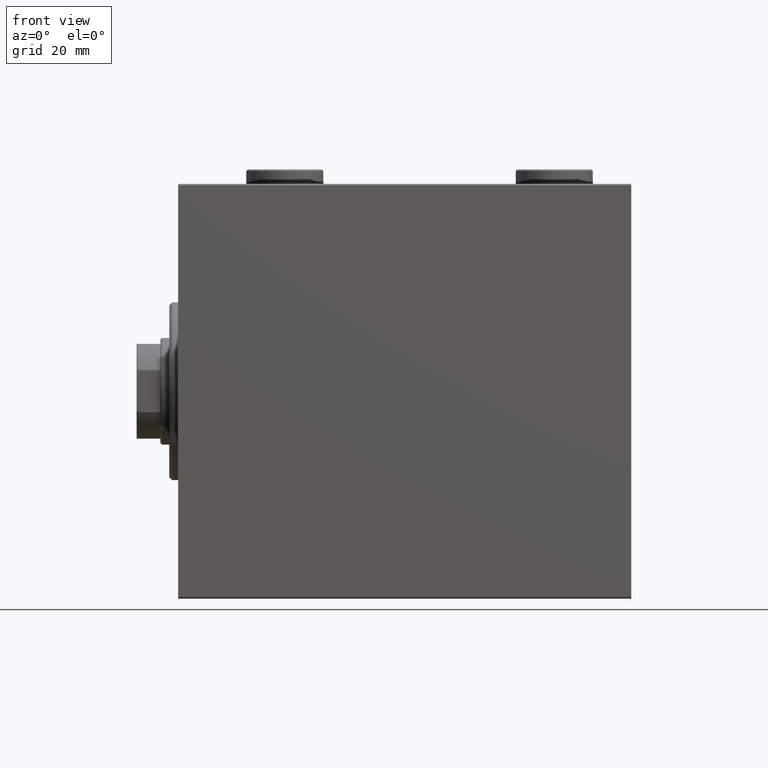
[diagram: clean part render]
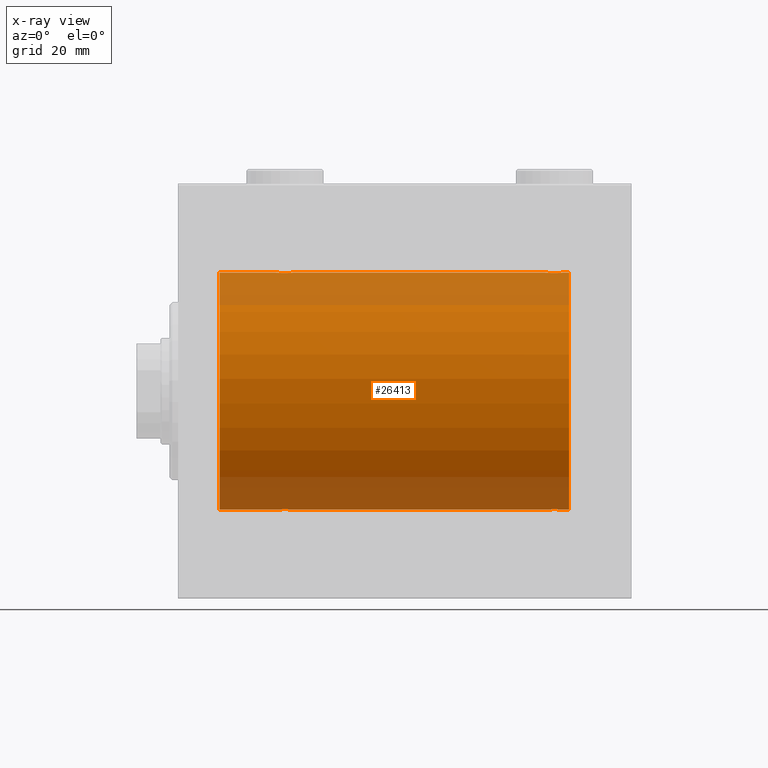
[diagram: x-ray — body ghosted, one internal face saturated and labeled with its STEP entity id]
A machine part, front view, then the same camera in x-ray: the body is ghosted and one INTERNAL B-rep face — a face not visible from any outside direction — is saturated and labeled: STEP entity #26413.
In plain terms, the highlighted cylindrical surface (partial cylindrical patch) has radius 40 mm, axis along (-1, -0, -0).
Its self-contained STEP definition (entity closure, byte-faithful):
#94 = CARTESIAN_POINT ( 'NONE',  ( 34.01538552187719233, -2.258217541132905293, 39.93644519243653690 ) ) ;
#381 = CARTESIAN_POINT ( 'NONE',  ( 124.3956640008791794, -1.502129635933999730, 39.97212271185186694 ) ) ;
#422 = EDGE_CURVE ( 'NONE', #27152, #35618, #17243, .T. ) ;
#552 = CARTESIAN_POINT ( 'NONE',  ( 36.19560531073086906, -3.000157693440643758, 39.88732948994960026 ) ) ;
#609 = CARTESIAN_POINT ( 'NONE',  ( 124.6149239908464352, -1.830402106103512061, 39.95843610133492518 ) ) ;
#715 = CIRCLE ( 'NONE', #36137, 40.00000000000000000 ) ;
#961 = DIRECTION ( 'NONE',  ( 0.000000000000000000, 0.000000000000000000, 1.000000000000000000 ) ) ;
#970 = EDGE_CURVE ( 'NONE', #21749, #34246, #4147, .T. ) ;
#1069 = CARTESIAN_POINT ( 'NONE',  ( 125.0153855218772492, -2.258217541132901296, 39.93644519243655111 ) ) ;
#1079 = CARTESIAN_POINT ( 'NONE',  ( 129.3850760091535506, -1.830402106103511617, -39.95843610133493229 ) ) ;
#1289 = CARTESIAN_POINT ( 'NONE',  ( 129.2582967032050192, -1.984537326394309353, 39.95097977400578770 ) ) ;
#1460 = CARTESIAN_POINT ( 'NONE',  ( 37.82690184632411246, -2.387636253591820079, 39.92882473497731866 ) ) ;
#1531 = CARTESIAN_POINT ( 'NONE',  ( 129.6043359991208490, -1.502129635933995955, -39.97212271185185983 ) ) ;
#1640 = DIRECTION ( 'NONE',  ( -1.000000000000000000, 0.000000000000000000, 0.000000000000000000 ) ) ;
#1740 = EDGE_CURVE ( 'NONE', #35618, #4345, #29662, .T. ) ;
#1757 = CARTESIAN_POINT ( 'NONE',  ( 129.9810187711092624, -0.3904143323715938974, -39.99856256910221219 ) ) ;
#1935 = CARTESIAN_POINT ( 'NONE',  ( 34.01863720485770415, -2.261082456166700005, -39.93628274425758917 ) ) ;
#2610 = CARTESIAN_POINT ( 'NONE',  ( 33.07973825008353685, -0.7903958539027382546, -39.99381900068937767 ) ) ;
#2831 = CARTESIAN_POINT ( 'NONE',  ( 32.99999999999999289, 4.605585004310627937E-15, -40.00000000000000000 ) ) ;
#3461 = ORIENTED_EDGE ( 'NONE', *, *, #19864, .T. ) ;
#3562 = CARTESIAN_POINT ( 'NONE',  ( 33.01898122889073051, -0.3904143323715976166, 39.99856256910221219 ) ) ;
#3963 = DIRECTION ( 'NONE',  ( -1.000000000000000000, -0.000000000000000000, -0.000000000000000000 ) ) ;
#4147 = B_SPLINE_CURVE_WITH_KNOTS ( 'NONE', 3,
 ( #42156, #24590, #3562, #28290, #7032, #21105, #41917, #35218, #31752, #94, #7489, #14191, #42385, #34523, #8404, #22487, #32209, #552, #22264, #11640, #43077, #25731, #29424, #1460, #25275, #11413, #18582, #4719, #4254, #33123, #19027, #7716 ),
 .UNSPECIFIED., .F., .F.,
 ( 4, 2, 2, 2, 2, 2, 2, 2, 2, 2, 2, 2, 2, 2, 2, 4 ),
 ( 0.009382660366305105304, 0.009968941372944142842, 0.01055522237958318038, 0.01114150338622221965, 0.01172778439286125719, 0.01231406539950029473, 0.01290034640613933400, 0.01348662741277837154, 0.01407290841941740908, 0.01465918942605644835, 0.01524547043269548416, 0.01583175143933452517, 0.01641803244597356271, 0.01700431345261260024, 0.01759059445925163778, 0.01876315647252971286 ),
 .UNSPECIFIED. ) ;
#4254 = CARTESIAN_POINT ( 'NONE',  ( 38.69537007708435539, -1.331594428131644747, 39.97823692017209396 ) ) ;
#4312 = CARTESIAN_POINT ( 'NONE',  ( 125.6677573113414184, -2.695129988695746714, 39.90917164320283206 ) ) ;
#4345 = VERTEX_POINT ( 'NONE', #45627 ) ;
#4550 = CARTESIAN_POINT ( 'NONE',  ( 129.6953700770843341, -1.331594428131642083, 39.97823692017209396 ) ) ;
#4561 = CARTESIAN_POINT ( 'NONE',  ( 128.8304482282240429, -2.384933850258120547, -39.92898715513240404 ) ) ;
#4656 = CYLINDRICAL_SURFACE ( 'NONE', #11728, 40.00000000000000000 ) ;
#4719 = CARTESIAN_POINT ( 'NONE',  ( 38.60188728128492386, -1.506322235190783232, 39.97196309111974699 ) ) ;
#4777 = CARTESIAN_POINT ( 'NONE',  ( 125.1695517717759998, -2.384933850258109889, 39.92898715513240404 ) ) ;
#5006 = CARTESIAN_POINT ( 'NONE',  ( 126.2254432117366463, -2.904869018727229246, -39.89440043036668726 ) ) ;
#5408 = CARTESIAN_POINT ( 'NONE',  ( 36.77869523415743913, -2.903766417398228938, -39.89448096967571900 ) ) ;
#5430 = DIRECTION ( 'NONE',  ( -1.000000000000000000, 0.000000000000000000, 0.000000000000000000 ) ) ;
#5856 = CARTESIAN_POINT ( 'NONE',  ( 38.84665273013138176, -0.9668189122103333366, -39.98872185468385254 ) ) ;
#6823 = B_SPLINE_CURVE_WITH_KNOTS ( 'NONE', 3,
 ( #25789, #18407, #11239, #29031, #14476, #21860, #381, #609, #39211, #1069, #4777, #18180, #4312, #32270, #8007, #14701, #14935, #18861, #11470, #32956, #36195, #42669, #28802, #35962, #25563, #1289, #25334, #39439, #4550, #32728, #15165, #43365 ),
 .UNSPECIFIED., .F., .F.,
 ( 4, 2, 2, 2, 2, 2, 2, 2, 2, 2, 2, 2, 2, 2, 2, 4 ),
 ( 0.009382660366305098365, 0.009968941372944132434, 0.01055522237958316650, 0.01114150338622220057, 0.01172778439286123638, 0.01231406539950027218, 0.01290034640613930625, 0.01348662741277834205, 0.01407290841941737786, 0.01465918942605641193, 0.01524547043269544946, 0.01583175143933448353, 0.01641803244597351760, 0.01700431345261255514, 0.01759059445925158921, 0.01876315647252969204 ),
 .UNSPECIFIED. ) ;
#6966 = LINE ( 'NONE', #31450, #31106 ) ;
#7032 = CARTESIAN_POINT ( 'NONE',  ( 33.15334726986859692, -0.9668189122103387767, 39.98872185468385254 ) ) ;
#7202 = FACE_OUTER_BOUND ( 'NONE', #24165, .T. ) ;
#7209 = VECTOR ( 'NONE', #12179, 1000.000000000000000 ) ;
#7489 = CARTESIAN_POINT ( 'NONE',  ( 34.16955177177597847, -2.384933850258112553, 39.92898715513240404 ) ) ;
#7716 = CARTESIAN_POINT ( 'NONE',  ( 39.00000000000000000, 1.037715139942869821E-15, 40.00000000000000000 ) ) ;
#8007 = CARTESIAN_POINT ( 'NONE',  ( 126.2213047658425324, -2.903766417398231159, 39.89448096967571189 ) ) ;
#8087 = CARTESIAN_POINT ( 'NONE',  ( 130.0000000000000000, 4.898587181754971267E-15, -40.00000000000000000 ) ) ;
#8119 = DIRECTION ( 'NONE',  ( 0.000000000000000000, 0.000000000000000000, 1.000000000000000000 ) ) ;
#8247 = CARTESIAN_POINT ( 'NONE',  ( 129.8466527301314102, -0.9668189122103406641, -39.98872185468384544 ) ) ;
#8404 = CARTESIAN_POINT ( 'NONE',  ( 35.22130476584258219, -2.903766417398241373, 39.89448096967571189 ) ) ;
#8411 = CARTESIAN_POINT ( 'NONE',  ( 132.0000000000000000, 0.000000000000000000, 40.00000000000000000 ) ) ;
#8469 = CARTESIAN_POINT ( 'NONE',  ( 129.9042517365134870, -0.7773146824711014702, -39.99291453282344122 ) ) ;
#8813 = EDGE_CURVE ( 'NONE', #37757, #4345, #6823, .T. ) ;
#8917 = CARTESIAN_POINT ( 'NONE',  ( 125.4991153159596706, -2.604941918888307839, -39.91523680494984205 ) ) ;
#9275 = CARTESIAN_POINT ( 'NONE',  ( 124.0000000000000000, -4.348227045662351080E-15, -40.00000000000000000 ) ) ;
#9343 = CARTESIAN_POINT ( 'NONE',  ( 13.99999999999999822, 0.000000000000000000, 0.000000000000000000 ) ) ;
#9462 = LINE ( 'NONE', #27242, #41226 ) ;
#9544 = CARTESIAN_POINT ( 'NONE',  ( 35.22544321173658943, -2.904869018727217700, -39.89440043036668726 ) ) ;
#9770 = CARTESIAN_POINT ( 'NONE',  ( 35.03510674146484405, -2.847401743820449305, -39.89859630624607689 ) ) ;
#10378 = DIRECTION ( 'NONE',  ( -1.000000000000000000, -0.000000000000000000, -0.000000000000000000 ) ) ;
#11239 = CARTESIAN_POINT ( 'NONE',  ( 124.0189812288907376, -0.3904143323715993374, 39.99856256910221219 ) ) ;
#11413 = CARTESIAN_POINT ( 'NONE',  ( 38.25829670320502629, -1.984537326394305801, 39.95097977400578060 ) ) ;
#11470 = CARTESIAN_POINT ( 'NONE',  ( 127.3910969250933789, -2.980812880639897688, 39.88879797994690080 ) ) ;
#11640 = CARTESIAN_POINT ( 'NONE',  ( 36.77455678826341057, -2.904869018727228358, 39.89440043036668015 ) ) ;
#11708 = CARTESIAN_POINT ( 'NONE',  ( 126.8043946892691594, -3.000157693440647311, -39.88732948994960736 ) ) ;
#11728 = AXIS2_PLACEMENT_3D ( 'NONE', #39775, #3963, #8119 ) ;
#11766 = ORIENTED_EDGE ( 'NONE', *, *, #1740, .F. ) ;
#11877 = DIRECTION ( 'NONE',  ( -1.000000000000000000, -0.000000000000000000, -0.000000000000000000 ) ) ;
#11937 = CARTESIAN_POINT ( 'NONE',  ( 125.1730981536758662, -2.387636253591809865, -39.92882473497731155 ) ) ;
#12179 = DIRECTION ( 'NONE',  ( -1.000000000000000000, -0.000000000000000000, -0.000000000000000000 ) ) ;
#12381 = VERTEX_POINT ( 'NONE', #23297 ) ;
#12382 = CARTESIAN_POINT ( 'NONE',  ( 128.3322426886586243, -2.695129988695754264, -39.90917164320280364 ) ) ;
#12463 = CARTESIAN_POINT ( 'NONE',  ( 39.00000000000000000, 1.037715139942869821E-15, 40.00000000000000000 ) ) ;
#12785 = CARTESIAN_POINT ( 'NONE',  ( 33.61748319088535908, -1.833695109615714802, -39.95828327492363741 ) ) ;
#13392 = CARTESIAN_POINT ( 'NONE',  ( 132.0000000000000000, 4.898587196589413026E-15, -40.00000000000000000 ) ) ;
#13462 = CARTESIAN_POINT ( 'NONE',  ( 35.60890307490667794, -2.980812880639892359, -39.88879797994688658 ) ) ;
#13546 = CARTESIAN_POINT ( 'NONE',  ( 132.0000000000000000, 0.000000000000000000, 40.00000000000000000 ) ) ;
#13587 = CARTESIAN_POINT ( 'NONE',  ( 13.99999999999999822, 0.000000000000000000, 40.00000000000000000 ) ) ;
#14191 = CARTESIAN_POINT ( 'NONE',  ( 34.49556917086533758, -2.602909538701760006, 39.91537030566259148 ) ) ;
#14245 = EDGE_CURVE ( 'NONE', #12381, #40778, #26861, .T. ) ;
#14476 = CARTESIAN_POINT ( 'NONE',  ( 124.1533472698686182, -0.9668189122103438837, 39.98872185468384544 ) ) ;
#14498 = ORIENTED_EDGE ( 'NONE', *, *, #8813, .T. ) ;
#14699 = VERTEX_POINT ( 'NONE', #8087 ) ;
#14701 = CARTESIAN_POINT ( 'NONE',  ( 126.6047751654642610, -2.980272303779546661, 39.88883864243169342 ) ) ;
#14823 = EDGE_CURVE ( 'NONE', #27152, #14699, #38774, .T. ) ;
#14935 = CARTESIAN_POINT ( 'NONE',  ( 126.7995871398080396, -2.999840380514741778, 39.88735335562826378 ) ) ;
#14946 = CARTESIAN_POINT ( 'NONE',  ( 126.0351067414649009, -2.847401743820463516, -39.89859630624609821 ) ) ;
#15057 = CARTESIAN_POINT ( 'NONE',  ( 132.0000000000000000, 0.000000000000000000, 0.000000000000000000 ) ) ;
#15095 = EDGE_CURVE ( 'NONE', #37757, #34246, #40365, .T. ) ;
#15165 = CARTESIAN_POINT ( 'NONE',  ( 130.0000000000000284, -0.3964922677423681208, 40.00000000000000000 ) ) ;
#15210 = ORIENTED_EDGE ( 'NONE', *, *, #422, .F. ) ;
#15400 = CARTESIAN_POINT ( 'NONE',  ( 129.6972134058088670, -1.327859336864152917, -39.97836169682017271 ) ) ;
#15628 = CARTESIAN_POINT ( 'NONE',  ( 124.6174831908853804, -1.833695109615725238, -39.95828327492363741 ) ) ;
#15843 = CARTESIAN_POINT ( 'NONE',  ( 128.9846144781228077, -2.258217541132911066, -39.93644519243653690 ) ) ;
#16248 = CARTESIAN_POINT ( 'NONE',  ( 33.30462992291564461, -1.331594428131640528, -39.97823692017208685 ) ) ;
#16458 = VECTOR ( 'NONE', #25324, 1000.000000000000000 ) ;
#16932 = CARTESIAN_POINT ( 'NONE',  ( 38.69721340580881730, -1.327859336864144035, -39.97836169682019403 ) ) ;
#17243 = CIRCLE ( 'NONE', #43085, 40.00000000000000000 ) ;
#18180 = CARTESIAN_POINT ( 'NONE',  ( 125.4955691708653802, -2.602909538701756897, 39.91537030566259148 ) ) ;
#18407 = CARTESIAN_POINT ( 'NONE',  ( 124.0000000000000142, -0.1957844162750570216, 39.99999999999999289 ) ) ;
#18582 = CARTESIAN_POINT ( 'NONE',  ( 38.38251680911464803, -1.833695109615718355, 39.95828327492363741 ) ) ;
#18613 = CARTESIAN_POINT ( 'NONE',  ( 32.99999999999999289, -1.483452932268112700E-23, 40.00000000000000000 ) ) ;
#18861 = CARTESIAN_POINT ( 'NONE',  ( 127.1956053107308975, -3.000157693440639317, 39.88732948994960736 ) ) ;
#18872 = CARTESIAN_POINT ( 'NONE',  ( 124.0797382500835226, -0.7903958539027424735, -39.99381900068937057 ) ) ;
#19027 = CARTESIAN_POINT ( 'NONE',  ( 39.00000000000000711, -0.3964922677423692865, 40.00000000000000711 ) ) ;
#19091 = CARTESIAN_POINT ( 'NONE',  ( 125.0186372048577255, -2.261082456166713772, -39.93628274425758207 ) ) ;
#19098 = EDGE_CURVE ( 'NONE', #42973, #44315, #715, .T. ) ;
#19491 = CARTESIAN_POINT ( 'NONE',  ( 37.98461447812278635, -2.258217541132897743, -39.93644519243654400 ) ) ;
#19748 = VECTOR ( 'NONE', #31607, 1000.000000000000000 ) ;
#19864 = EDGE_CURVE ( 'NONE', #14699, #43987, #20389, .T. ) ;
#20156 = CARTESIAN_POINT ( 'NONE',  ( 36.96938341894465907, -2.845855236045336856, -39.89870693240651178 ) ) ;
#20389 = B_SPLINE_CURVE_WITH_KNOTS ( 'NONE', 3,
 ( #40348, #36880, #1757, #8469, #8247, #15400, #1531, #1079, #29940, #15843, #4561, #44045, #12382, #32517, #22331, #36435, #26473, #11708, #40569, #5006, #14946, #36654, #8917, #11937, #19091, #23003, #15628, #26023, #40126, #18872, #43824, #29044 ),
 .UNSPECIFIED., .F., .F.,
 ( 4, 2, 2, 2, 2, 2, 2, 2, 2, 2, 2, 2, 2, 2, 2, 4 ),
 ( 0.009382660366305120916, 0.009968941372944167129, 0.01055522237958321334, 0.01114150338622225955, 0.01172778439286130403, 0.01231406539950035024, 0.01290034640613939472, 0.01348662741277844093, 0.01407290841941748541, 0.01465918942605653162, 0.01524547043269557783, 0.01583175143933462231, 0.01641803244597366679, 0.01700431345261268351, 0.01759059445925170023, 0.01876315647252973021 ),
 .UNSPECIFIED. ) ;
#20499 = CARTESIAN_POINT ( 'NONE',  ( 132.0000000000000000, 4.898587196589413026E-15, -40.00000000000000000 ) ) ;
#21105 = CARTESIAN_POINT ( 'NONE',  ( 33.30278659419118270, -1.327859336864150253, 39.97836169682017982 ) ) ;
#21749 = VERTEX_POINT ( 'NONE', #18613 ) ;
#21860 = CARTESIAN_POINT ( 'NONE',  ( 124.3027865941911898, -1.327859336864153805, 39.97836169682017982 ) ) ;
#22264 = CARTESIAN_POINT ( 'NONE',  ( 36.39109692509333627, -2.980812880639903906, 39.88879797994688658 ) ) ;
#22331 = CARTESIAN_POINT ( 'NONE',  ( 127.7786952341574960, -2.903766417398240041, -39.89448096967572610 ) ) ;
#22487 = CARTESIAN_POINT ( 'NONE',  ( 35.60477516546423260, -2.980272303779553766, 39.88883864243167920 ) ) ;
#22756 = ORIENTED_EDGE ( 'NONE', *, *, #26604, .F. ) ;
#22960 = CARTESIAN_POINT ( 'NONE',  ( 38.26097616994740491, -1.981471132463162643, -39.95113231465139592 ) ) ;
#23003 = CARTESIAN_POINT ( 'NONE',  ( 124.7417032967949950, -1.984537326394313350, -39.95097977400577349 ) ) ;
#23297 = CARTESIAN_POINT ( 'NONE',  ( 39.00000000000000000, 4.898587181754971267E-15, -40.00000000000000000 ) ) ;
#23635 = CARTESIAN_POINT ( 'NONE',  ( 34.49911531595966352, -2.604941918888306507, -39.91523680494982784 ) ) ;
#23857 = CARTESIAN_POINT ( 'NONE',  ( 36.20041286019198168, -2.999840380514735116, -39.88735335562824957 ) ) ;
#24165 = EDGE_LOOP ( 'NONE', ( #15210, #31899, #3461, #34088, #26060, #42993, #42016, #22756, #27474, #34175, #14498, #11766 ) ) ;
#24590 = CARTESIAN_POINT ( 'NONE',  ( 32.99999999999997158, -0.1957844162750552452, 40.00000000000000000 ) ) ;
#25275 = CARTESIAN_POINT ( 'NONE',  ( 37.98136279514229585, -2.261082456166707111, 39.93628274425758207 ) ) ;
#25324 = DIRECTION ( 'NONE',  ( -1.000000000000000000, -0.000000000000000000, -0.000000000000000000 ) ) ;
#25334 = CARTESIAN_POINT ( 'NONE',  ( 129.3825168091146338, -1.833695109615721686, 39.95828327492363030 ) ) ;
#25455 = VECTOR ( 'NONE', #11877, 1000.000000000000000 ) ;
#25563 = CARTESIAN_POINT ( 'NONE',  ( 128.9813627951423030, -2.261082456166709775, 39.93628274425759628 ) ) ;
#25731 = CARTESIAN_POINT ( 'NONE',  ( 37.32853644746295885, -2.696981015661930936, 39.90904630908465833 ) ) ;
#25789 = CARTESIAN_POINT ( 'NONE',  ( 124.0000000000000142, -1.483413489222851649E-23, 40.00000000000000000 ) ) ;
#26023 = CARTESIAN_POINT ( 'NONE',  ( 124.3981127187150832, -1.506322235190790337, -39.97196309111976120 ) ) ;
#26060 = ORIENTED_EDGE ( 'NONE', *, *, #14245, .T. ) ;
#26413 = ADVANCED_FACE ( 'NONE', ( #7202 ), #4656, .F. ) ;
#26473 = CARTESIAN_POINT ( 'NONE',  ( 127.2004128601920456, -2.999840380514751104, -39.88735335562825668 ) ) ;
#26604 = EDGE_CURVE ( 'NONE', #21749, #44315, #9462, .T. ) ;
#26861 = B_SPLINE_CURVE_WITH_KNOTS ( 'NONE', 3,
 ( #27553, #45125, #31024, #37962, #5856, #16932, #40751, #41423, #22960, #19491, #30793, #41652, #41192, #20156, #5408, #30346, #23857, #44448, #13462, #9544, #9770, #37063, #23635, #33590, #1935, #37735, #12785, #27101, #16248, #2610, #34265, #2831 ),
 .UNSPECIFIED., .F., .F.,
 ( 4, 2, 2, 2, 2, 2, 2, 2, 2, 2, 2, 2, 2, 2, 2, 4 ),
 ( 0.009382660366305110508, 0.009968941372944146312, 0.01055522237958318212, 0.01114150338622221792, 0.01172778439286125372, 0.01231406539950028953, 0.01290034640613932533, 0.01348662741277836113, 0.01407290841941739694, 0.01465918942605643274, 0.01524547043269546855, 0.01583175143933450435, 0.01641803244597354189, 0.01700431345261257596, 0.01759059445925161003, 0.01876315647252968163 ),
 .UNSPECIFIED. ) ;
#27101 = CARTESIAN_POINT ( 'NONE',  ( 33.39811271871507614, -1.506322235190781456, -39.97196309111974699 ) ) ;
#27152 = VERTEX_POINT ( 'NONE', #13392 ) ;
#27242 = CARTESIAN_POINT ( 'NONE',  ( 132.0000000000000000, 0.000000000000000000, 40.00000000000000000 ) ) ;
#27474 = ORIENTED_EDGE ( 'NONE', *, *, #970, .T. ) ;
#27553 = CARTESIAN_POINT ( 'NONE',  ( 39.00000000000000000, 4.898587181754971267E-15, -40.00000000000000000 ) ) ;
#28290 = CARTESIAN_POINT ( 'NONE',  ( 33.09574826348647036, -0.7773146824711036906, 39.99291453282343412 ) ) ;
#28802 = CARTESIAN_POINT ( 'NONE',  ( 128.5008846840403862, -2.604941918888314056, 39.91523680494984205 ) ) ;
#29031 = CARTESIAN_POINT ( 'NONE',  ( 124.0957482634864988, -0.7773146824711042457, 39.99291453282345543 ) ) ;
#29044 = CARTESIAN_POINT ( 'NONE',  ( 124.0000000000000000, -4.348227045662351080E-15, -40.00000000000000000 ) ) ;
#29424 = CARTESIAN_POINT ( 'NONE',  ( 37.50088468404035069, -2.604941918888315833, 39.91523680494983495 ) ) ;
#29662 = LINE ( 'NONE', #8411, #25455 ) ;
#29940 = CARTESIAN_POINT ( 'NONE',  ( 129.2609761699474120, -1.981471132463174856, -39.95113231465138881 ) ) ;
#30346 = CARTESIAN_POINT ( 'NONE',  ( 36.39522483453576029, -2.980272303779541332, -39.88883864243169342 ) ) ;
#30793 = CARTESIAN_POINT ( 'NONE',  ( 37.83044822822401443, -2.384933850258100119, -39.92898715513241115 ) ) ;
#31024 = CARTESIAN_POINT ( 'NONE',  ( 38.98101877110926239, -0.3904143323715931757, -39.99856256910221219 ) ) ;
#31106 = VECTOR ( 'NONE', #39312, 1000.000000000000000 ) ;
#31450 = CARTESIAN_POINT ( 'NONE',  ( 132.0000000000000000, 4.898587196589413026E-15, -40.00000000000000000 ) ) ;
#31607 = DIRECTION ( 'NONE',  ( -1.000000000000000000, -0.000000000000000000, -0.000000000000000000 ) ) ;
#31752 = CARTESIAN_POINT ( 'NONE',  ( 33.73902383005257377, -1.981471132463168416, 39.95113231465138881 ) ) ;
#31899 = ORIENTED_EDGE ( 'NONE', *, *, #14823, .T. ) ;
#32209 = CARTESIAN_POINT ( 'NONE',  ( 35.79958713980802543, -2.999840380514749327, 39.88735335562824247 ) ) ;
#32259 = CARTESIAN_POINT ( 'NONE',  ( 132.0000000000000000, 4.898587196589413026E-15, -40.00000000000000000 ) ) ;
#32270 = CARTESIAN_POINT ( 'NONE',  ( 126.0306165810553836, -2.845855236045348846, 39.89870693240651178 ) ) ;
#32517 = CARTESIAN_POINT ( 'NONE',  ( 127.9693834189446733, -2.845855236045358172, -39.89870693240651178 ) ) ;
#32717 = LINE ( 'NONE', #32259, #16458 ) ;
#32728 = CARTESIAN_POINT ( 'NONE',  ( 129.9202617499164774, -0.7903958539027365893, 39.99381900068937767 ) ) ;
#32956 = CARTESIAN_POINT ( 'NONE',  ( 127.7745567882634106, -2.904869018727219476, 39.89440043036668726 ) ) ;
#33123 = CARTESIAN_POINT ( 'NONE',  ( 38.92026174991647025, -0.7903958539027386987, 39.99381900068935636 ) ) ;
#33590 = CARTESIAN_POINT ( 'NONE',  ( 34.17309815367588754, -2.387636253591812974, -39.92882473497732576 ) ) ;
#34088 = ORIENTED_EDGE ( 'NONE', *, *, #45485, .T. ) ;
#34175 = ORIENTED_EDGE ( 'NONE', *, *, #15095, .F. ) ;
#34246 = VERTEX_POINT ( 'NONE', #12463 ) ;
#34265 = CARTESIAN_POINT ( 'NONE',  ( 32.99999999999998579, -0.3964922677423637909, -39.99999999999998579 ) ) ;
#34523 = CARTESIAN_POINT ( 'NONE',  ( 35.03061658105534804, -2.845855236045349734, 39.89870693240651889 ) ) ;
#35218 = CARTESIAN_POINT ( 'NONE',  ( 33.61492399084646365, -1.830402106103518722, 39.95843610133494650 ) ) ;
#35618 = VERTEX_POINT ( 'NONE', #13546 ) ;
#35962 = CARTESIAN_POINT ( 'NONE',  ( 128.8269018463241480, -2.387636253591819191, 39.92882473497733997 ) ) ;
#36137 = AXIS2_PLACEMENT_3D ( 'NONE', #9343, #5430, #40324 ) ;
#36195 = CARTESIAN_POINT ( 'NONE',  ( 127.9648932585351275, -2.847401743820454190, 39.89859630624607689 ) ) ;
#36435 = CARTESIAN_POINT ( 'NONE',  ( 127.3952248345358100, -2.980272303779554655, -39.88883864243169342 ) ) ;
#36654 = CARTESIAN_POINT ( 'NONE',  ( 125.6714635525370767, -2.696981015661930492, -39.90904630908469386 ) ) ;
#36880 = CARTESIAN_POINT ( 'NONE',  ( 130.0000000000000000, -0.1957844162750506378, -39.99999999999999289 ) ) ;
#37063 = CARTESIAN_POINT ( 'NONE',  ( 34.67146355253704826, -2.696981015661917613, -39.90904630908468675 ) ) ;
#37735 = CARTESIAN_POINT ( 'NONE',  ( 33.74170329679496660, -1.984537326394300250, -39.95097977400577349 ) ) ;
#37757 = VERTEX_POINT ( 'NONE', #40777 ) ;
#37962 = CARTESIAN_POINT ( 'NONE',  ( 38.90425173651351543, -0.7773146824710984726, -39.99291453282344122 ) ) ;
#38774 = LINE ( 'NONE', #20499, #19748 ) ;
#38926 = EDGE_CURVE ( 'NONE', #40778, #42973, #6966, .T. ) ;
#39211 = CARTESIAN_POINT ( 'NONE',  ( 124.7390238300526022, -1.981471132463164864, 39.95113231465138171 ) ) ;
#39312 = DIRECTION ( 'NONE',  ( -1.000000000000000000, -0.000000000000000000, -0.000000000000000000 ) ) ;
#39439 = CARTESIAN_POINT ( 'NONE',  ( 129.6018872812850020, -1.506322235190788117, 39.97196309111976831 ) ) ;
#39775 = CARTESIAN_POINT ( 'NONE',  ( 132.0000000000000000, 0.000000000000000000, 0.000000000000000000 ) ) ;
#40126 = CARTESIAN_POINT ( 'NONE',  ( 124.3046299229156375, -1.331594428131649632, -39.97823692017209396 ) ) ;
#40324 = DIRECTION ( 'NONE',  ( 0.000000000000000000, 0.000000000000000000, 1.000000000000000000 ) ) ;
#40348 = CARTESIAN_POINT ( 'NONE',  ( 130.0000000000000000, 4.898587181754971267E-15, -40.00000000000000000 ) ) ;
#40365 = LINE ( 'NONE', #43840, #7209 ) ;
#40569 = CARTESIAN_POINT ( 'NONE',  ( 126.6089030749067206, -2.980812880639905682, -39.88879797994690080 ) ) ;
#40751 = CARTESIAN_POINT ( 'NONE',  ( 38.60433599912083480, -1.502129635934000396, -39.97212271185185273 ) ) ;
#40777 = CARTESIAN_POINT ( 'NONE',  ( 124.0000000000000142, -1.483413489222851649E-23, 40.00000000000000000 ) ) ;
#40778 = VERTEX_POINT ( 'NONE', #45270 ) ;
#41192 = CARTESIAN_POINT ( 'NONE',  ( 37.33224268865864559, -2.695129988695729839, -39.90917164320280364 ) ) ;
#41226 = VECTOR ( 'NONE', #10378, 1000.000000000000000 ) ;
#41423 = CARTESIAN_POINT ( 'NONE',  ( 38.38507600915353635, -1.830402106103512505, -39.95843610133493229 ) ) ;
#41652 = CARTESIAN_POINT ( 'NONE',  ( 37.50443082913466242, -2.602909538701748016, -39.91537030566259148 ) ) ;
#41917 = CARTESIAN_POINT ( 'NONE',  ( 33.39566400087915810, -1.502129635934004614, 39.97212271185186694 ) ) ;
#42016 = ORIENTED_EDGE ( 'NONE', *, *, #19098, .T. ) ;
#42156 = CARTESIAN_POINT ( 'NONE',  ( 32.99999999999999289, -1.483452932268112700E-23, 40.00000000000000000 ) ) ;
#42385 = CARTESIAN_POINT ( 'NONE',  ( 34.66775731134134730, -2.695129988695744494, 39.90917164320281074 ) ) ;
#42669 = CARTESIAN_POINT ( 'NONE',  ( 128.3285364474629660, -2.696981015661922054, 39.90904630908467965 ) ) ;
#42973 = VERTEX_POINT ( 'NONE', #45628 ) ;
#42993 = ORIENTED_EDGE ( 'NONE', *, *, #38926, .T. ) ;
#43077 = CARTESIAN_POINT ( 'NONE',  ( 36.96489325853514174, -2.847401743820462183, 39.89859630624607689 ) ) ;
#43085 = AXIS2_PLACEMENT_3D ( 'NONE', #15057, #1640, #961 ) ;
#43365 = CARTESIAN_POINT ( 'NONE',  ( 130.0000000000000000, 1.438244736840143699E-15, 40.00000000000000000 ) ) ;
#43824 = CARTESIAN_POINT ( 'NONE',  ( 124.0000000000000426, -0.3964922677423736164, -40.00000000000001421 ) ) ;
#43840 = CARTESIAN_POINT ( 'NONE',  ( 132.0000000000000000, 0.000000000000000000, 40.00000000000000000 ) ) ;
#43987 = VERTEX_POINT ( 'NONE', #9275 ) ;
#44045 = CARTESIAN_POINT ( 'NONE',  ( 128.5044308291346908, -2.602909538701766667, -39.91537030566258437 ) ) ;
#44315 = VERTEX_POINT ( 'NONE', #13587 ) ;
#44448 = CARTESIAN_POINT ( 'NONE',  ( 35.80439468926913804, -3.000157693440631324, -39.88732948994960026 ) ) ;
#45125 = CARTESIAN_POINT ( 'NONE',  ( 38.99999999999999289, -0.1957844162750510819, -40.00000000000000711 ) ) ;
#45270 = CARTESIAN_POINT ( 'NONE',  ( 32.99999999999999289, 4.605585004310627937E-15, -40.00000000000000000 ) ) ;
#45485 = EDGE_CURVE ( 'NONE', #43987, #12381, #32717, .T. ) ;
#45627 = CARTESIAN_POINT ( 'NONE',  ( 130.0000000000000000, 1.438244736840143699E-15, 40.00000000000000000 ) ) ;
#45628 = CARTESIAN_POINT ( 'NONE',  ( 13.99999999999999822, 4.898587196589413026E-15, -40.00000000000000000 ) ) ;